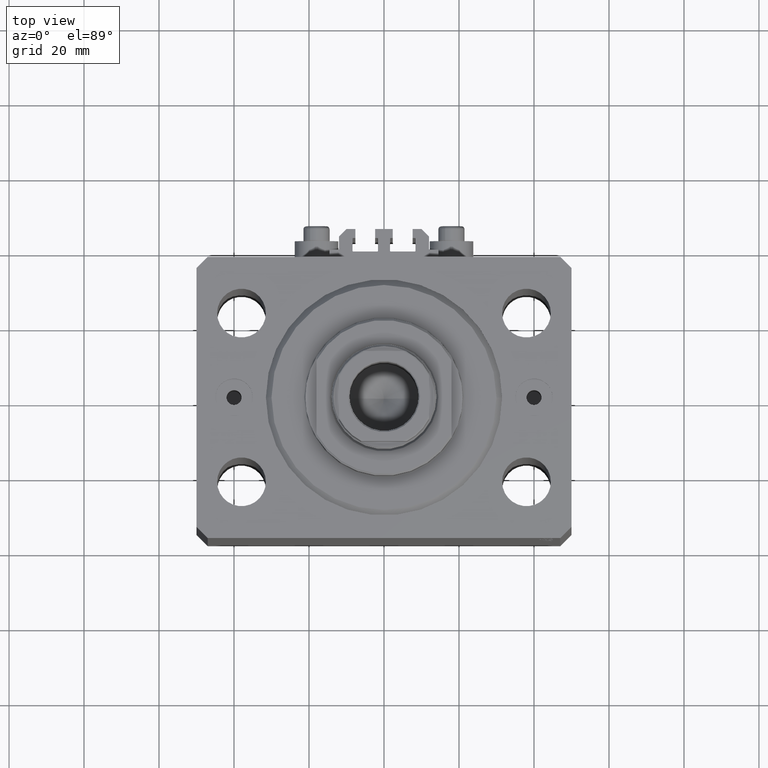
[diagram: clean part render]
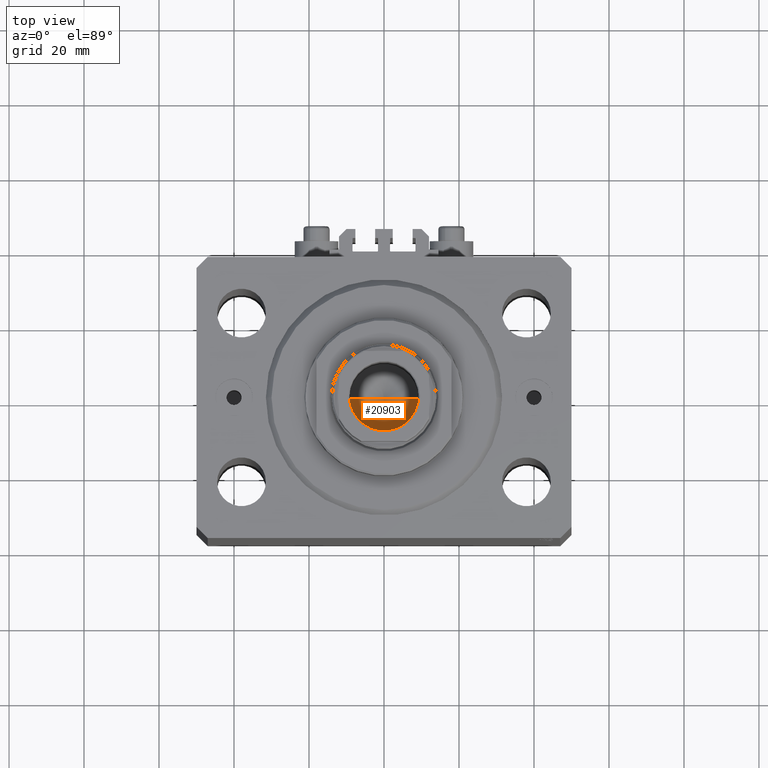
[diagram: same view with one face highlighted and labeled with its STEP entity id]
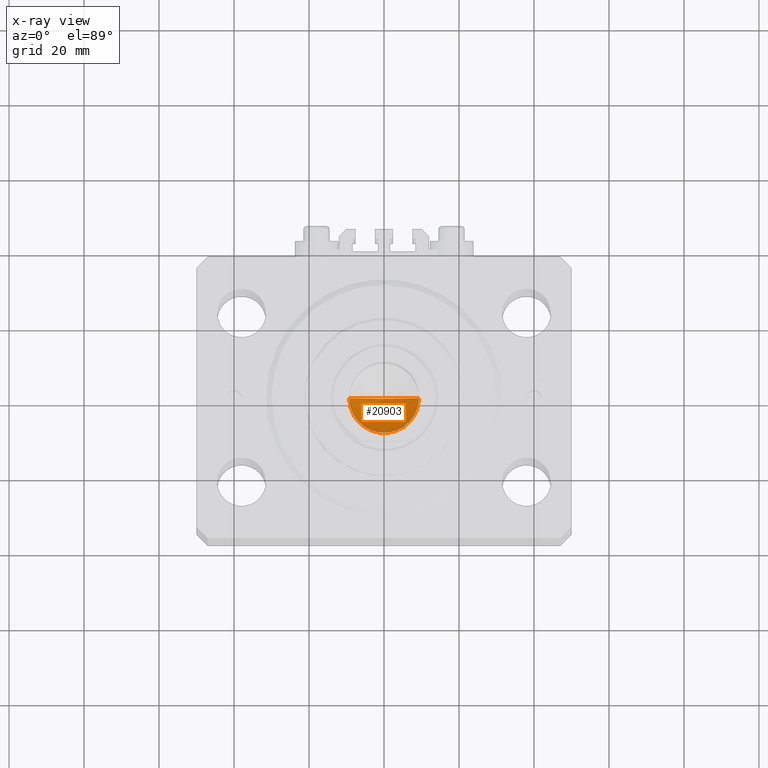
[diagram: x-ray of the same camera — body ghosted, the highlighted face saturated]
A machine part, top view. The second image highlights one B-rep face of the part: STEP entity #20903.
The next image is the same camera in x-ray: the body ghosted, the highlighted face saturated — about 8% of this face is hidden behind the body in this view.
In plain terms, the highlighted conical surface has half-angle 59 deg.
Its self-contained STEP definition (entity closure, byte-faithful):
#677 = LINE ( 'NONE', #36975, #26351 ) ;
#1375 = FACE_OUTER_BOUND ( 'NONE', #13689, .T. ) ;
#5371 = CARTESIAN_POINT ( 'NONE',  ( 9.249999999999994671, 0.000000000000000000, 98.00000000000000000 ) ) ;
#5441 = CARTESIAN_POINT ( 'NONE',  ( -9.249999999999994671, 1.132798289211300909E-15, 98.00000000000000000 ) ) ;
#5803 = CIRCLE ( 'NONE', #37085, 9.249999999999994671 ) ;
#8091 = EDGE_CURVE ( 'NONE', #24220, #38500, #677, .T. ) ;
#8868 = ORIENTED_EDGE ( 'NONE', *, *, #8091, .F. ) ;
#11059 = DIRECTION ( 'NONE',  ( -0.8571673007021117785, 1.049727191138617956E-16, 0.5150380749100550437 ) ) ;
#11627 = DIRECTION ( 'NONE',  ( -0.000000000000000000, -0.000000000000000000, 1.000000000000000000 ) ) ;
#11860 = CARTESIAN_POINT ( 'NONE',  ( 0.000000000000000000, 0.000000000000000000, 98.00000000000000000 ) ) ;
#13689 = EDGE_LOOP ( 'NONE', ( #8868, #15328, #28394 ) ) ;
#14348 = VECTOR ( 'NONE', #11059, 1000.000000000000000 ) ;
#14743 = EDGE_CURVE ( 'NONE', #43706, #38500, #5803, .T. ) ;
#15328 = ORIENTED_EDGE ( 'NONE', *, *, #19263, .T. ) ;
#15439 = CARTESIAN_POINT ( 'NONE',  ( 0.000000000000000000, 0.000000000000000000, 98.00000000000000000 ) ) ;
#17634 = AXIS2_PLACEMENT_3D ( 'NONE', #11860, #11627, #19282 ) ;
#18790 = DIRECTION ( 'NONE',  ( 1.000000000000000000, 0.000000000000000000, 0.000000000000000000 ) ) ;
#19263 = EDGE_CURVE ( 'NONE', #24220, #43706, #33051, .T. ) ;
#19282 = DIRECTION ( 'NONE',  ( 1.000000000000000000, 0.000000000000000000, 0.000000000000000000 ) ) ;
#20903 = ADVANCED_FACE ( 'NONE', ( #1375 ), #29836, .F. ) ;
#24220 = VERTEX_POINT ( 'NONE', #29009 ) ;
#26351 = VECTOR ( 'NONE', #33398, 1000.000000000000000 ) ;
#26678 = DIRECTION ( 'NONE',  ( -0.000000000000000000, -0.000000000000000000, 1.000000000000000000 ) ) ;
#28394 = ORIENTED_EDGE ( 'NONE', *, *, #14743, .T. ) ;
#29009 = CARTESIAN_POINT ( 'NONE',  ( -1.046994375366439223E-14, 0.000000000000000000, 92.44203927399506426 ) ) ;
#29836 = CONICAL_SURFACE ( 'NONE', #17634, 9.249999999999994671, 1.029744258676653423 ) ;
#33051 = LINE ( 'NONE', #43808, #14348 ) ;
#33398 = DIRECTION ( 'NONE',  ( 0.8571673007021117785, 0.000000000000000000, 0.5150380749100550437 ) ) ;
#36975 = CARTESIAN_POINT ( 'NONE',  ( 9.249999999999994671, 0.000000000000000000, 98.00000000000000000 ) ) ;
#37085 = AXIS2_PLACEMENT_3D ( 'NONE', #15439, #26678, #18790 ) ;
#38500 = VERTEX_POINT ( 'NONE', #5371 ) ;
#43706 = VERTEX_POINT ( 'NONE', #5441 ) ;
#43808 = CARTESIAN_POINT ( 'NONE',  ( -9.249999999999994671, 1.132798289211300909E-15, 98.00000000000000000 ) ) ;